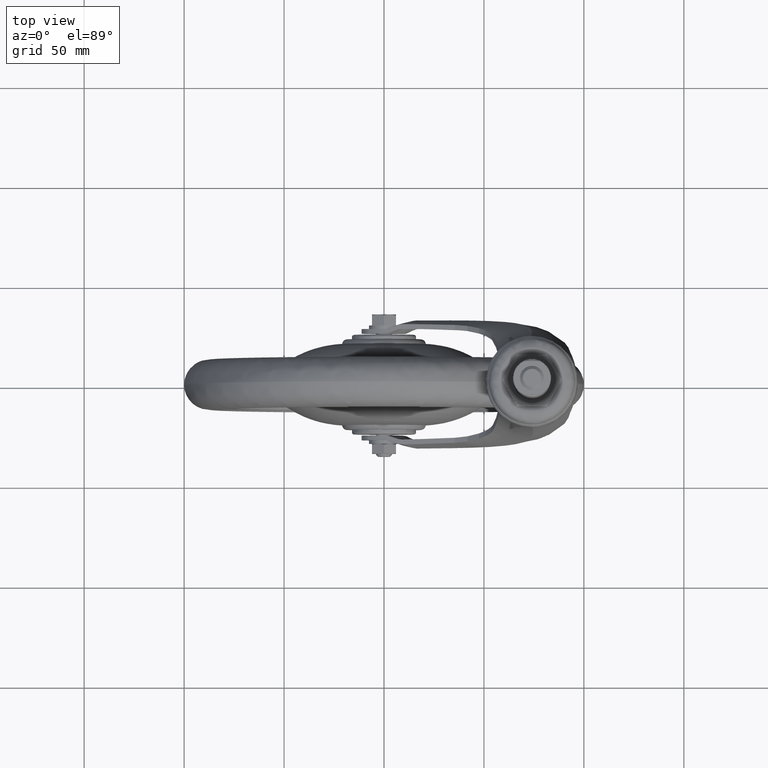
[diagram: clean part render]
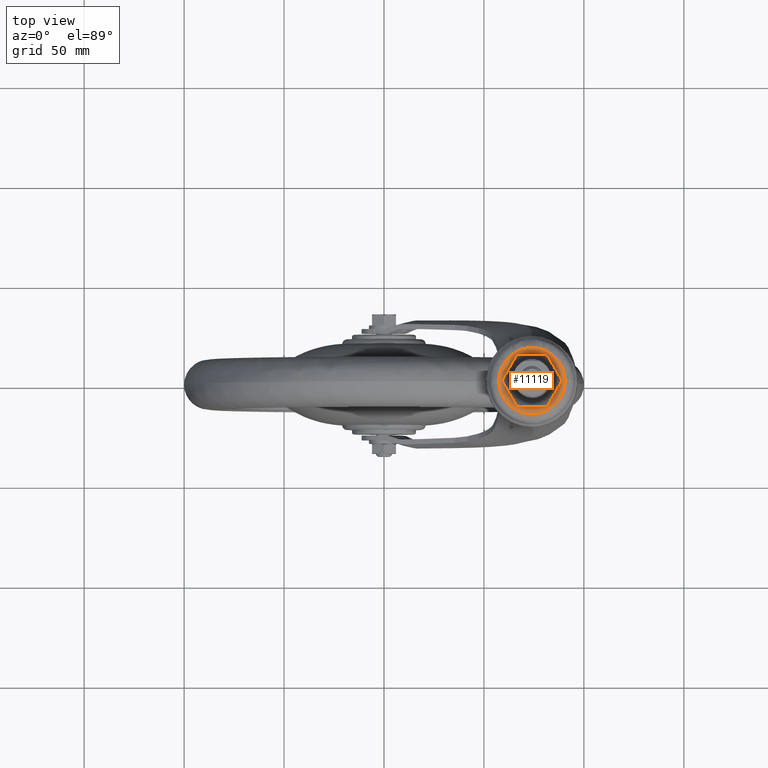
[diagram: same view with one face highlighted and labeled with its STEP entity id]
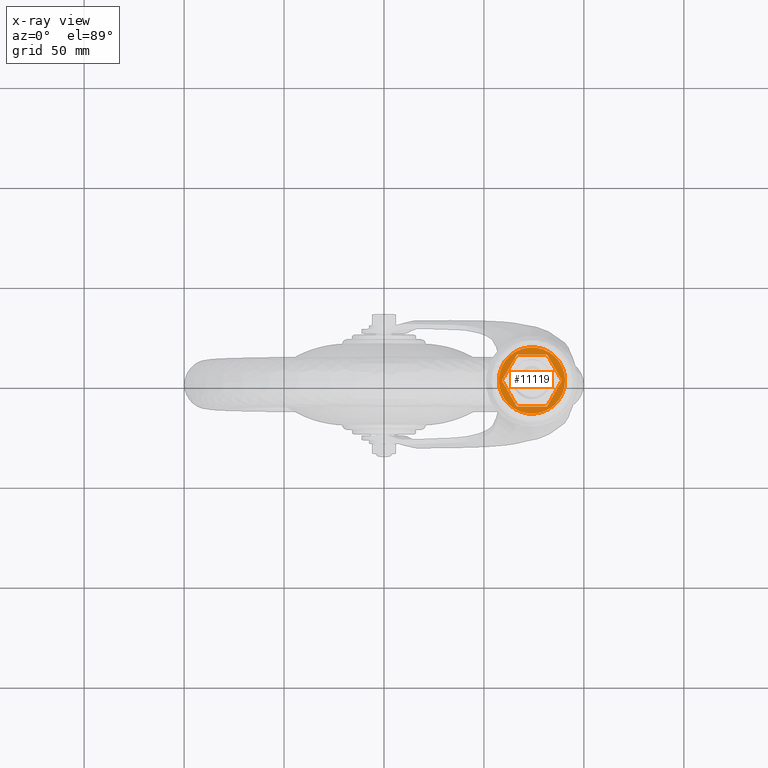
[diagram: x-ray of the same camera — body ghosted, the highlighted face saturated]
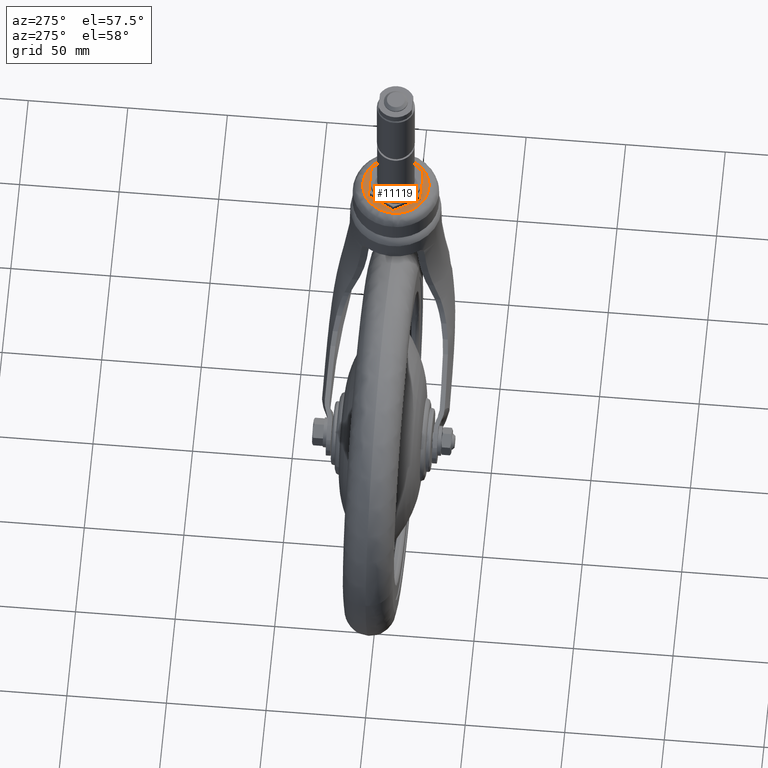
[diagram: same view with one face highlighted and labeled with its STEP entity id]
A machine part, top view. The second image highlights one B-rep face of the part: STEP entity #11119.
The next image is the same camera in x-ray: the body ghosted, the highlighted face saturated — about 0% of this face is hidden behind the body in this view.
A second angle (auxiliary view) of the same face is appended — the face is thin or edge-on in the first view.
In plain terms, the highlighted face is a freeform B-spline surface patch.
Its self-contained STEP definition (entity closure, byte-faithful):
#10897=CARTESIAN_POINT('',(58.988892999999997,-8.673617E-016,118.200000000000000));
#10898=VERTEX_POINT('',#10897);
#10904=CARTESIAN_POINT('',(66.494446999999994,-13.0,118.200000000000000));
#10905=VERTEX_POINT('',#10904);
#10906=CARTESIAN_POINT('',(66.494446999999994,-13.0,118.200000000000000));
#10907=CARTESIAN_POINT('',(58.988892999999997,-8.673617E-016,118.200000000000000));
#10908=QUASI_UNIFORM_CURVE('',1,(#10906,#10907),.UNSPECIFIED.,.F.,.U.);
#10909=EDGE_CURVE('',#10905,#10898,#10908,.T.);
#10927=CARTESIAN_POINT('',(81.505553999999989,-13.0,118.200000000000000));
#10928=VERTEX_POINT('',#10927);
#10929=CARTESIAN_POINT('',(81.505553999999989,-13.0,118.200000000000000));
#10930=CARTESIAN_POINT('',(66.494446999999994,-13.0,118.200000000000000));
#10931=QUASI_UNIFORM_CURVE('',1,(#10929,#10930),.UNSPECIFIED.,.F.,.U.);
#10932=EDGE_CURVE('',#10928,#10905,#10931,.T.);
#10950=CARTESIAN_POINT('',(89.011107000000109,-8.673617E-016,118.200000000000000));
#10951=VERTEX_POINT('',#10950);
#10952=CARTESIAN_POINT('',(89.011107000000109,-8.673617E-016,118.200000000000000));
#10953=CARTESIAN_POINT('',(81.505553999999989,-13.0,118.200000000000000));
#10954=QUASI_UNIFORM_CURVE('',1,(#10952,#10953),.UNSPECIFIED.,.F.,.U.);
#10955=EDGE_CURVE('',#10951,#10928,#10954,.T.);
#10973=CARTESIAN_POINT('',(81.505553999999989,13.0,118.200000000000000));
#10974=VERTEX_POINT('',#10973);
#10975=CARTESIAN_POINT('',(81.505553999999989,13.0,118.200000000000000));
#10976=CARTESIAN_POINT('',(89.011107000000109,-8.673617E-016,118.200000000000000));
#10977=QUASI_UNIFORM_CURVE('',1,(#10975,#10976),.UNSPECIFIED.,.F.,.U.);
#10978=EDGE_CURVE('',#10974,#10951,#10977,.T.);
#10996=CARTESIAN_POINT('',(66.494446999999994,13.0,118.200000000000000));
#10997=VERTEX_POINT('',#10996);
#10998=CARTESIAN_POINT('',(66.494446999999994,13.0,118.200000000000000));
#10999=CARTESIAN_POINT('',(81.505553999999989,13.0,118.200000000000000));
#11000=QUASI_UNIFORM_CURVE('',1,(#10998,#10999),.UNSPECIFIED.,.F.,.U.);
#11001=EDGE_CURVE('',#10997,#10974,#11000,.T.);
#11019=CARTESIAN_POINT('',(58.988892999999997,-8.673617E-016,118.200000000000000));
#11020=CARTESIAN_POINT('',(66.494446999999994,13.0,118.200000000000000));
#11021=QUASI_UNIFORM_CURVE('',1,(#11019,#11020),.UNSPECIFIED.,.F.,.U.);
#11022=EDGE_CURVE('',#10898,#10997,#11021,.T.);
#11028=CARTESIAN_POINT('',(92.258339935651946,-18.257980976409161,118.200000000000000));
#11029=CARTESIAN_POINT('',(55.741659173854643,-18.257980976409161,118.200000000000000));
#11030=CARTESIAN_POINT('',(92.258339935651946,18.257981866885050,118.200000000000000));
#11031=CARTESIAN_POINT('',(55.741659173854643,18.257981866885050,118.200000000000000));
#11032=B_SPLINE_SURFACE_WITH_KNOTS('',1,1,((#11028,#11030),(#11029,#11031)),.UNSPECIFIED.,.F.,.F.,.U.,(2,2),(2,2),(0.0,36.516680761797303),(0.0,36.515962843294197),.UNSPECIFIED.);
#11033=CARTESIAN_POINT('',(57.401310651239427,-0.208596264841335,118.200000000000000));
#11034=VERTEX_POINT('',#11033);
#11035=CARTESIAN_POINT('',(57.399999999999991,0.0,118.200000000000000));
#11036=VERTEX_POINT('',#11035);
#11037=CARTESIAN_POINT('',(57.401310651239434,-0.208596264841335,118.199999999999950));
#11038=CARTESIAN_POINT('',(57.399999992495125,-0.104302250054364,118.199999999999990));
#11039=CARTESIAN_POINT('',(57.399999999999991,0.0,118.200000000000000));
#11047=(BOUNDED_CURVE()B_SPLINE_CURVE(2,(#11037,#11038,#11039),.UNSPECIFIED.,.F.,.U.)B_SPLINE_CURVE_WITH_KNOTS((3,3),(0.997784295894297,1.0),.UNSPECIFIED.)CURVE()GEOMETRIC_REPRESENTATION_ITEM()RATIONAL_B_SPLINE_CURVE((0.994854295580875,0.997404141170169,1.0))REPRESENTATION_ITEM(''));
#11048=EDGE_CURVE('',#11034,#11036,#11047,.T.);
#11049=ORIENTED_EDGE('',*,*,#11048,.F.);
#11050=CARTESIAN_POINT('',(90.599999999999994,0.0,118.200000000000000));
#11051=VERTEX_POINT('',#11050);
#11052=CARTESIAN_POINT('',(90.599999999999994,0.0,118.200000000000000));
#11053=CARTESIAN_POINT('',(90.600935095767667,-1.690945336616468,118.199999999999800));
#11054=CARTESIAN_POINT('',(90.214176189814594,-4.192743400133842,118.200000000000300));
#11055=CARTESIAN_POINT('',(88.909593604965565,-7.468964549788086,118.200000000000200));
#11056=CARTESIAN_POINT('',(87.398430309523590,-9.968028201555732,118.199999999998790));
#11057=CARTESIAN_POINT('',(85.124016373971060,-12.492489118040700,118.200000000003800));
#11058=CARTESIAN_POINT('',(81.973314058085677,-14.758955689079460,118.199999999993910));
#11059=CARTESIAN_POINT('',(78.477840570994687,-16.126692808637468,118.200000000003500));
#11060=CARTESIAN_POINT('',(75.056248103356978,-16.653629648109490,118.199999999998300));
#11061=CARTESIAN_POINT('',(71.933063458369062,-16.577970691722921,118.200000000000700));
#11062=CARTESIAN_POINT('',(69.079649298433509,-15.940321359978601,118.199999999999900));
#11063=CARTESIAN_POINT('',(66.259386113898074,-14.777903485892280,118.199999999999800));
#11064=CARTESIAN_POINT('',(63.382245865633081,-12.966210845274659,118.200000000000300));
#11065=CARTESIAN_POINT('',(60.863267027862207,-10.370535325733339,118.200000000000000));
#11066=CARTESIAN_POINT('',(59.124119353431027,-7.535124102428339,118.200000000000000));
#11067=CARTESIAN_POINT('',(57.823137902130632,-4.328799058885152,118.200000000000000));
#11068=CARTESIAN_POINT('',(57.421065222870013,-1.831700142316272,118.200000000000000));
#11069=CARTESIAN_POINT('',(57.401310651239427,-0.208596264841335,118.200000000000000));
#11070=B_SPLINE_CURVE_WITH_KNOTS('',3,(#11052,#11053,#11054,#11055,#11056,#11057,#11058,#11059,#11060,#11061,#11062,#11063,#11064,#11065,#11066,#11067,#11068,#11069),.UNSPECIFIED.,.F.,.U.,(4,1,1,1,1,1,1,1,1,1,1,1,1,1,1,4),(0.000000757693776,5.072462099353295,7.507166513332962,10.550732202381431,13.797159599005081,17.652258132106290,22.116153630744300,24.956766133185560,27.999901024809819,31.449216937120969,33.681141520442999,37.130490135510279,41.594312572135777,44.434925010846271,47.072721282326413,51.942159617896259),.UNSPECIFIED.);
#11071=EDGE_CURVE('',#11051,#11034,#11070,.T.);
#11072=ORIENTED_EDGE('',*,*,#11071,.F.);
#11073=CARTESIAN_POINT('',(90.598689348760558,0.208596264841332,118.200000000000000));
#11074=VERTEX_POINT('',#11073);
#11075=CARTESIAN_POINT('',(90.598689348760558,0.208596264841332,118.200000000000020));
#11076=CARTESIAN_POINT('',(90.600000007504875,0.104302250054363,118.199999999999970));
#11077=CARTESIAN_POINT('',(90.599999999999994,0.0,118.200000000000000));
#11085=(BOUNDED_CURVE()B_SPLINE_CURVE(2,(#11075,#11076,#11077),.UNSPECIFIED.,.F.,.U.)B_SPLINE_CURVE_WITH_KNOTS((3,3),(0.497784295894297,0.500000000000000),.UNSPECIFIED.)CURVE()GEOMETRIC_REPRESENTATION_ITEM()RATIONAL_B_SPLINE_CURVE((0.994854295580875,0.997404141170169,1.0))REPRESENTATION_ITEM(''));
#11086=EDGE_CURVE('',#11074,#11051,#11085,.T.);
#11087=ORIENTED_EDGE('',*,*,#11086,.F.);
#11088=CARTESIAN_POINT('',(57.399999999999991,0.0,118.200000000000000));
#11089=CARTESIAN_POINT('',(57.399063957214693,1.690947364289470,118.200000000000100));
#11090=CARTESIAN_POINT('',(57.785827252131533,4.192738174852157,118.200000000000100));
#11091=CARTESIAN_POINT('',(59.090447870337400,7.468926819683017,118.199999999999900));
#11092=CARTESIAN_POINT('',(60.777056555658653,10.258826860289339,118.200000000000800));
#11093=CARTESIAN_POINT('',(63.324422703957993,12.917902685841080,118.199999999997700));
#11094=CARTESIAN_POINT('',(66.363597170739041,14.859346238163729,118.200000000003900));
#11095=CARTESIAN_POINT('',(69.145119922491830,15.947528190652969,118.199999999995200));
#11096=CARTESIAN_POINT('',(71.795788537935621,16.523735927126971,118.200000000008100));
#11097=CARTESIAN_POINT('',(74.777914378802976,16.688578761862331,118.199999999993390));
#11098=CARTESIAN_POINT('',(78.416174573666595,16.174878316760338,118.200000000001400));
#11099=CARTESIAN_POINT('',(81.958301679825752,14.739997807790671,118.200000000005200));
#11100=CARTESIAN_POINT('',(84.784716758835543,12.734137929939770,118.199999999997200));
#11101=CARTESIAN_POINT('',(87.209895493534319,10.265925986160591,118.200000000000600));
#11102=CARTESIAN_POINT('',(88.993493326700388,7.437336134684479,118.200000000000000));
#11103=CARTESIAN_POINT('',(90.270105000726588,3.856684921500880,118.200000000000100));
#11104=CARTESIAN_POINT('',(90.582017253392877,1.561124647521172,118.200000000000100));
#11105=CARTESIAN_POINT('',(90.598689348760558,0.208596264841332,118.200000000000000));
#11106=B_SPLINE_CURVE_WITH_KNOTS('',3,(#11088,#11089,#11090,#11091,#11092,#11093,#11094,#11095,#11096,#11097,#11098,#11099,#11100,#11101,#11102,#11103,#11104,#11105),.UNSPECIFIED.,.F.,.U.,(4,1,1,1,1,1,1,1,1,1,1,1,1,1,1,4),(0.000000757730660,5.072462099385227,7.507166513362208,10.550732202407019,14.811647158370199,18.463827202234349,21.304544029222200,23.739344508025980,26.579760236584690,30.231931649560909,34.695707998828127,37.942103604479591,40.579842767151312,45.043633286356503,47.884325780259474,51.942159617896237),.UNSPECIFIED.);
#11107=EDGE_CURVE('',#11036,#11074,#11106,.T.);
#11108=ORIENTED_EDGE('',*,*,#11107,.F.);
#11109=EDGE_LOOP('',(#11049,#11072,#11087,#11108));
#11110=FACE_OUTER_BOUND('',#11109,.T.);
#11111=ORIENTED_EDGE('',*,*,#11022,.T.);
#11112=ORIENTED_EDGE('',*,*,#11001,.T.);
#11113=ORIENTED_EDGE('',*,*,#10978,.T.);
#11114=ORIENTED_EDGE('',*,*,#10955,.T.);
#11115=ORIENTED_EDGE('',*,*,#10932,.T.);
#11116=ORIENTED_EDGE('',*,*,#10909,.T.);
#11117=EDGE_LOOP('',(#11111,#11112,#11113,#11114,#11115,#11116));
#11118=FACE_BOUND('',#11117,.T.);
#11119=ADVANCED_FACE('',(#11110,#11118),#11032,.F.);